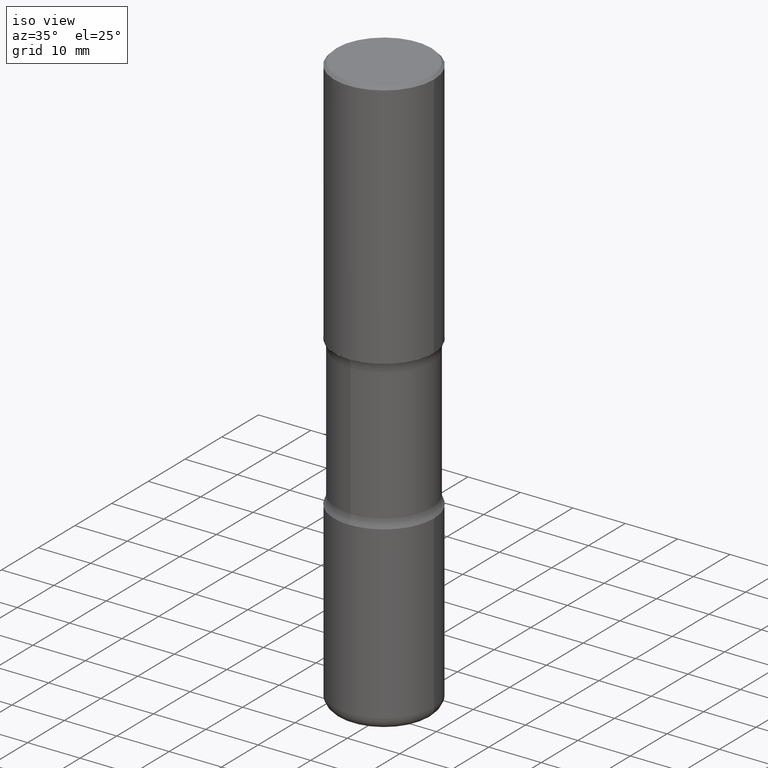
[diagram: clean part render]
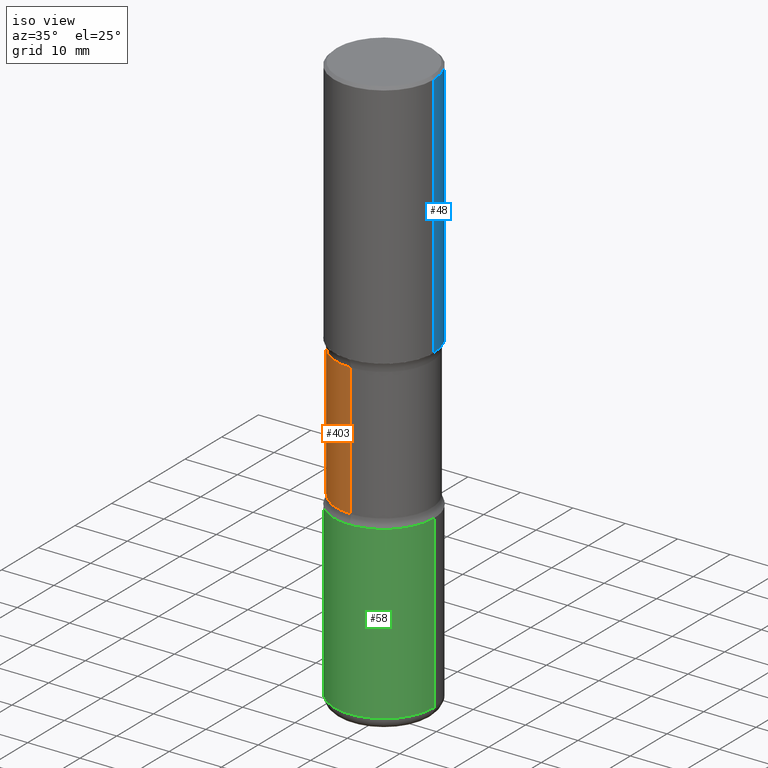
[diagram: same view with three faces highlighted in distinct colors, each labeled with its STEP entity id]
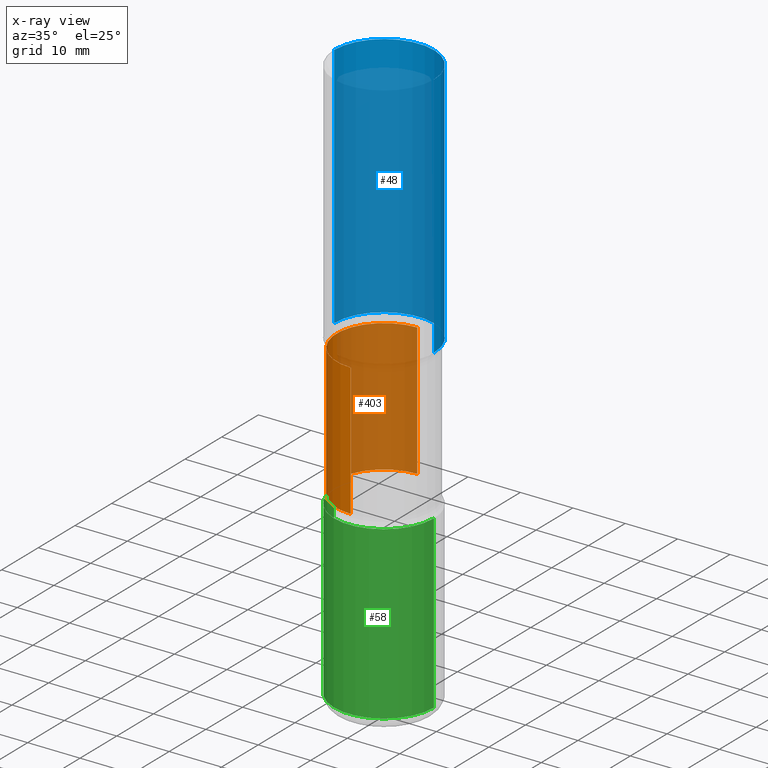
[diagram: x-ray of the same camera — body ghosted, the three highlighted faces saturated]
A machine part, iso view with three faces highlighted in distinct colors.
The next image is the same camera in x-ray (body ghosted, the three faces saturated) — at least one of them is partly hidden behind the body in this view.
Their STEP definitions:

[orange] entity #403 — the highlighted cylindrical surface (partial cylindrical patch) has radius 9.0551 mm, axis along (0, -0, -1).
#4 = VERTEX_POINT ( 'NONE', #487 ) ;
#34 = CYLINDRICAL_SURFACE ( 'NONE', #533, 0.3564999999999999836 ) ;
#35 = CARTESIAN_POINT ( 'NONE',  ( 2.489426194595200956E-15, 0.3564999999999931557, -1.940442723048481977 ) ) ;
#40 = CARTESIAN_POINT ( 'NONE',  ( 1.077046249923823256E-28, -1.517278655767635025E-14, -4.375000000000000000 ) ) ;
#85 = CARTESIAN_POINT ( 'NONE',  ( 4.690167066012064720E-29, -6.853961813559904754E-15, -1.940442723048480866 ) ) ;
#109 = ORIENTED_EDGE ( 'NONE', *, *, #226, .F. ) ;
#112 = DIRECTION ( 'NONE',  ( 2.497495331405690228E-29, -3.416976393561393039E-15, -1.000000000000000000 ) ) ;
#122 = DIRECTION ( 'NONE',  ( 6.982962677686266711E-15, 1.000000000000000000, -3.065187089665372450E-15 ) ) ;
#128 = DIRECTION ( 'NONE',  ( 2.497495331405690228E-29, -3.416976393561393039E-15, -1.000000000000000000 ) ) ;
#134 = AXIS2_PLACEMENT_3D ( 'NONE', #85, #128, #250 ) ;
#136 = DIRECTION ( 'NONE',  ( 6.982962677686265922E-15, 1.000000000000000000, -3.065187089665373239E-15 ) ) ;
#182 = CARTESIAN_POINT ( 'NONE',  ( -2.509227142684892896E-15, -0.3565000000000068114, -1.940442723048479756 ) ) ;
#198 = AXIS2_PLACEMENT_3D ( 'NONE', #354, #535, #136 ) ;
#204 = VERTEX_POINT ( 'NONE', #182 ) ;
#226 = EDGE_CURVE ( 'NONE', #4, #560, #266, .T. ) ;
#239 = CARTESIAN_POINT ( 'NONE',  ( 2.489426194595261699E-15, 0.3564999999999848290, -4.375000000000000888 ) ) ;
#250 = DIRECTION ( 'NONE',  ( 6.982962677686266711E-15, 1.000000000000000000, -3.065187089665372450E-15 ) ) ;
#263 = VERTEX_POINT ( 'NONE', #35 ) ;
#266 = CIRCLE ( 'NONE', #198, 0.3564999999999999281 ) ;
#281 = FACE_OUTER_BOUND ( 'NONE', #396, .T. ) ;
#283 = LINE ( 'NONE', #516, #522 ) ;
#284 = EDGE_CURVE ( 'NONE', #204, #4, #283, .T. ) ;
#299 = EDGE_CURVE ( 'NONE', #263, #560, #452, .T. ) ;
#333 = ORIENTED_EDGE ( 'NONE', *, *, #284, .F. ) ;
#340 = VECTOR ( 'NONE', #112, 39.37007874015748143 ) ;
#354 = CARTESIAN_POINT ( 'NONE',  ( 7.172963523267356402E-29, -1.025082777674240497E-14, -2.934557276951519800 ) ) ;
#385 = DIRECTION ( 'NONE',  ( 2.497495331405690228E-29, -3.416976393561393039E-15, -1.000000000000000000 ) ) ;
#396 = EDGE_LOOP ( 'NONE', ( #333, #438, #486, #109 ) ) ;
#403 = ADVANCED_FACE ( 'NONE', ( #281 ), #34, .T. ) ;
#438 = ORIENTED_EDGE ( 'NONE', *, *, #502, .T. ) ;
#452 = LINE ( 'NONE', #239, #340 ) ;
#459 = DIRECTION ( 'NONE',  ( 2.497495331405690228E-29, -3.416976393561393039E-15, -1.000000000000000000 ) ) ;
#486 = ORIENTED_EDGE ( 'NONE', *, *, #299, .T. ) ;
#487 = CARTESIAN_POINT ( 'NONE',  ( -2.509227142684864892E-15, -0.3565000000000101976, -2.934557276951518912 ) ) ;
#502 = EDGE_CURVE ( 'NONE', #204, #263, #548, .T. ) ;
#512 = CARTESIAN_POINT ( 'NONE',  ( 2.489426194595225017E-15, 0.3564999999999897140, -2.934557276951521132 ) ) ;
#516 = CARTESIAN_POINT ( 'NONE',  ( -2.445767536205443313E-15, -0.3565000000000151936, -4.374999999999998224 ) ) ;
#522 = VECTOR ( 'NONE', #459, 39.37007874015748143 ) ;
#533 = AXIS2_PLACEMENT_3D ( 'NONE', #40, #385, #122 ) ;
#535 = DIRECTION ( 'NONE',  ( 2.497495331405690228E-29, -3.416976393561393039E-15, -1.000000000000000000 ) ) ;
#548 = CIRCLE ( 'NONE', #134, 0.3564999999999999836 ) ;
#560 = VERTEX_POINT ( 'NONE', #512 ) ;

[blue] entity #48 — the highlighted cylindrical surface (partial cylindrical patch) has radius 9.525 mm, axis along (-0, 0, 1).
#13 = CARTESIAN_POINT ( 'NONE',  ( 4.890937612370306439E-31, -6.982962677686338448E-17, -0.02000000000000013572 ) ) ;
#16 = LINE ( 'NONE', #307, #406 ) ;
#27 = CARTESIAN_POINT ( 'NONE',  ( -0.3750000000000002220, 2.548781377355488296E-15, -0.02000000000000013572 ) ) ;
#48 = ADVANCED_FACE ( 'NONE', ( #532 ), #169, .T. ) ;
#73 = AXIS2_PLACEMENT_3D ( 'NONE', #79, #199, #242 ) ;
#79 = CARTESIAN_POINT ( 'NONE',  ( 4.585254011597132801E-29, -6.546527510330900285E-15, -1.875000000000000666 ) ) ;
#93 = CIRCLE ( 'NONE', #132, 0.3750000000000002220 ) ;
#108 = DIRECTION ( 'NONE',  ( -2.445468806185136877E-29, 3.491481338843145188E-15, 1.000000000000000000 ) ) ;
#115 = VECTOR ( 'NONE', #108, 39.37007874015748143 ) ;
#118 = VERTEX_POINT ( 'NONE', #185 ) ;
#127 = VERTEX_POINT ( 'NONE', #404 ) ;
#132 = AXIS2_PLACEMENT_3D ( 'NONE', #13, #311, #542 ) ;
#145 = CARTESIAN_POINT ( 'NONE',  ( -0.3750000000000003886, 2.664535259100378458E-15, -1.844600658845591560E-29 ) ) ;
#169 = CYLINDRICAL_SURFACE ( 'NONE', #181, 0.3750000000000003886 ) ;
#179 = ORIENTED_EDGE ( 'NONE', *, *, #363, .T. ) ;
#181 = AXIS2_PLACEMENT_3D ( 'NONE', #439, #519, #390 ) ;
#185 = CARTESIAN_POINT ( 'NONE',  ( -0.3750000000000004441, -6.436433094535026432E-16, -1.875000000000000666 ) ) ;
#186 = EDGE_CURVE ( 'NONE', #453, #382, #93, .T. ) ;
#199 = DIRECTION ( 'NONE',  ( -2.445468806185136597E-29, 3.491481338843145583E-15, 1.000000000000000000 ) ) ;
#238 = EDGE_CURVE ( 'NONE', #127, #453, #16, .T. ) ;
#242 = DIRECTION ( 'NONE',  ( 1.000000000000000000, -6.982962677686265133E-15, 0.000000000000000000 ) ) ;
#279 = EDGE_LOOP ( 'NONE', ( #330, #179, #473, #376 ) ) ;
#307 = CARTESIAN_POINT ( 'NONE',  ( 0.3750000000000003886, -2.618611004132352383E-15, 1.828566290923477884E-29 ) ) ;
#308 = CIRCLE ( 'NONE', #73, 0.3750000000000004441 ) ;
#310 = EDGE_CURVE ( 'NONE', #127, #118, #308, .T. ) ;
#311 = DIRECTION ( 'NONE',  ( -2.445468806185136597E-29, 3.491481338843145583E-15, 1.000000000000000000 ) ) ;
#330 = ORIENTED_EDGE ( 'NONE', *, *, #310, .T. ) ;
#335 = CARTESIAN_POINT ( 'NONE',  ( 0.3750000000000002220, -2.642516375941189606E-15, -0.02000000000000013572 ) ) ;
#363 = EDGE_CURVE ( 'NONE', #118, #382, #545, .T. ) ;
#373 = DIRECTION ( 'NONE',  ( -2.445468806185136877E-29, 3.491481338843145188E-15, 1.000000000000000000 ) ) ;
#376 = ORIENTED_EDGE ( 'NONE', *, *, #238, .F. ) ;
#382 = VERTEX_POINT ( 'NONE', #27 ) ;
#390 = DIRECTION ( 'NONE',  ( 1.000000000000000000, -6.982962677686265922E-15, 4.876176775795935793E-29 ) ) ;
#404 = CARTESIAN_POINT ( 'NONE',  ( 0.3750000000000004441, -9.165138514463253457E-15, -1.875000000000000666 ) ) ;
#406 = VECTOR ( 'NONE', #373, 39.37007874015748143 ) ;
#439 = CARTESIAN_POINT ( 'NONE',  ( 0.000000000000000000, 0.000000000000000000, 0.000000000000000000 ) ) ;
#453 = VERTEX_POINT ( 'NONE', #335 ) ;
#473 = ORIENTED_EDGE ( 'NONE', *, *, #186, .F. ) ;
#519 = DIRECTION ( 'NONE',  ( -2.445468806185136597E-29, 3.491481338843145583E-15, 1.000000000000000000 ) ) ;
#532 = FACE_OUTER_BOUND ( 'NONE', #279, .T. ) ;
#542 = DIRECTION ( 'NONE',  ( 1.000000000000000000, -6.982962677686266711E-15, 0.000000000000000000 ) ) ;
#545 = LINE ( 'NONE', #145, #115 ) ;

[green] entity #58 — the highlighted cylindrical surface (partial cylindrical patch) has radius 9.525 mm, axis along (-0, 0, 1).
#11 = FACE_OUTER_BOUND ( 'NONE', #351, .T. ) ;
#29 = CIRCLE ( 'NONE', #547, 0.3750000000000004441 ) ;
#49 = AXIS2_PLACEMENT_3D ( 'NONE', #481, #295, #254 ) ;
#53 = CYLINDRICAL_SURFACE ( 'NONE', #500, 0.3750000000000003886 ) ;
#57 = DIRECTION ( 'NONE',  ( 1.000000000000000000, -6.982962677686269866E-15, 0.000000000000000000 ) ) ;
#58 = ADVANCED_FACE ( 'NONE', ( #11 ), #53, .T. ) ;
#75 = EDGE_CURVE ( 'NONE', #337, #318, #462, .T. ) ;
#88 = CARTESIAN_POINT ( 'NONE',  ( 0.000000000000000000, 0.000000000000000000, 0.000000000000000000 ) ) ;
#103 = EDGE_CURVE ( 'NONE', #243, #318, #402, .T. ) ;
#104 = EDGE_CURVE ( 'NONE', #434, #243, #29, .T. ) ;
#130 = CARTESIAN_POINT ( 'NONE',  ( -0.3750000000000003886, 2.664535259100378458E-15, -1.844600658845591560E-29 ) ) ;
#146 = ORIENTED_EDGE ( 'NONE', *, *, #454, .F. ) ;
#157 = CARTESIAN_POINT ( 'NONE',  ( 0.3750000000000002220, -1.309305502066178637E-14, -2.999999999999999556 ) ) ;
#213 = DIRECTION ( 'NONE',  ( -2.445468806185136597E-29, 3.491481338843145583E-15, 1.000000000000000000 ) ) ;
#225 = CARTESIAN_POINT ( 'NONE',  ( 0.3750000000000003886, -2.618611004132352383E-15, 1.828566290923477884E-29 ) ) ;
#227 = DIRECTION ( 'NONE',  ( -2.445468806185136877E-29, 3.491481338843145188E-15, 1.000000000000000000 ) ) ;
#234 = CARTESIAN_POINT ( 'NONE',  ( -0.3750000000000002220, -1.005318551763577873E-14, -2.999999999999999556 ) ) ;
#235 = ORIENTED_EDGE ( 'NONE', *, *, #103, .T. ) ;
#243 = VERTEX_POINT ( 'NONE', #274 ) ;
#254 = DIRECTION ( 'NONE',  ( 1.000000000000000000, -6.982962677686263555E-15, 0.000000000000000000 ) ) ;
#274 = CARTESIAN_POINT ( 'NONE',  ( 0.3750000000000004996, -1.757960854107523356E-14, -4.285000000000000142 ) ) ;
#286 = VECTOR ( 'NONE', #483, 39.37007874015748143 ) ;
#295 = DIRECTION ( 'NONE',  ( -2.445468806185136597E-29, 3.491481338843145583E-15, 1.000000000000000000 ) ) ;
#318 = VERTEX_POINT ( 'NONE', #157 ) ;
#337 = VERTEX_POINT ( 'NONE', #234 ) ;
#346 = CARTESIAN_POINT ( 'NONE',  ( -0.3750000000000004996, -1.229646227784250153E-14, -4.285000000000000142 ) ) ;
#351 = EDGE_LOOP ( 'NONE', ( #146, #412, #235, #526 ) ) ;
#386 = DIRECTION ( 'NONE',  ( 1.000000000000000000, -6.982962677686265922E-15, 4.876176775795935793E-29 ) ) ;
#393 = LINE ( 'NONE', #130, #286 ) ;
#402 = LINE ( 'NONE', #225, #413 ) ;
#412 = ORIENTED_EDGE ( 'NONE', *, *, #104, .T. ) ;
#413 = VECTOR ( 'NONE', #227, 39.37007874015748143 ) ;
#434 = VERTEX_POINT ( 'NONE', #346 ) ;
#447 = DIRECTION ( 'NONE',  ( -2.445468806185136597E-29, 3.491481338843145583E-15, 1.000000000000000000 ) ) ;
#454 = EDGE_CURVE ( 'NONE', #434, #337, #393, .T. ) ;
#462 = CIRCLE ( 'NONE', #49, 0.3750000000000002220 ) ;
#481 = CARTESIAN_POINT ( 'NONE',  ( 7.336406418555408669E-29, -1.047444401652943478E-14, -2.999999999999999556 ) ) ;
#483 = DIRECTION ( 'NONE',  ( -2.445468806185136877E-29, 3.491481338843145188E-15, 1.000000000000000000 ) ) ;
#493 = CARTESIAN_POINT ( 'NONE',  ( 1.047883383450331094E-28, -1.496099753694288039E-14, -4.285000000000000142 ) ) ;
#500 = AXIS2_PLACEMENT_3D ( 'NONE', #88, #213, #386 ) ;
#526 = ORIENTED_EDGE ( 'NONE', *, *, #75, .F. ) ;
#547 = AXIS2_PLACEMENT_3D ( 'NONE', #493, #447, #57 ) ;